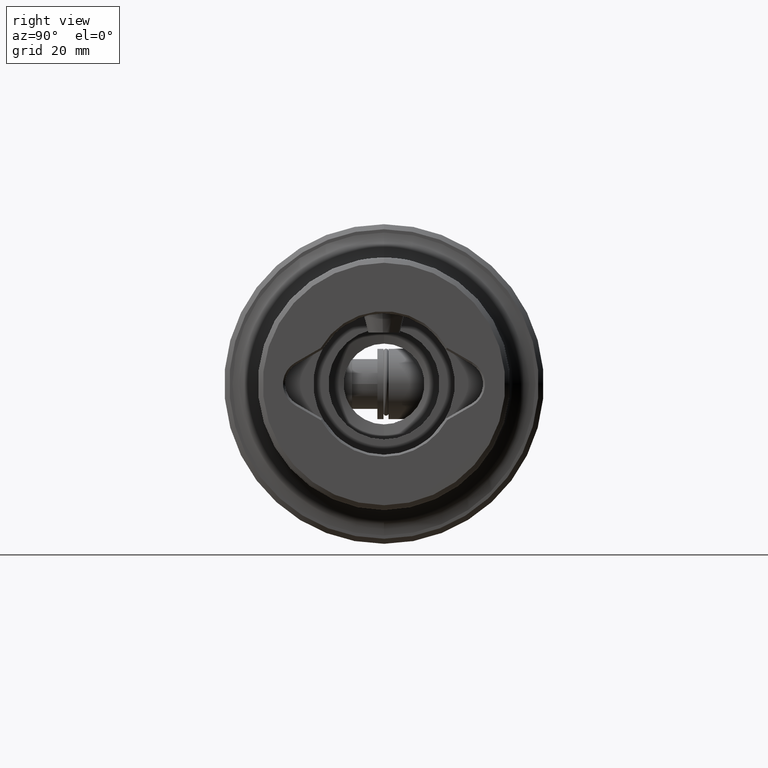
[diagram: clean part render]
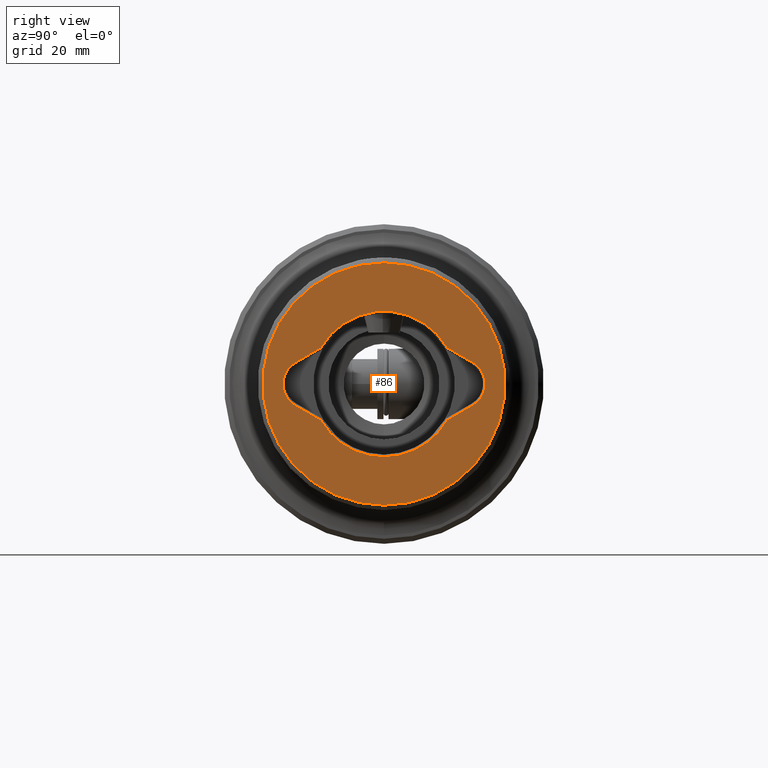
[diagram: same view with one face highlighted and labeled with its STEP entity id]
A machine part, right view. The second image highlights one B-rep face of the part: STEP entity #86.
In plain terms, the highlighted planar face has unit normal (1, 0, 0).
Its self-contained STEP definition (entity closure, byte-faithful):
#86 = ADVANCED_FACE ( 'NONE', ( #2101, #2102 ), #1176, .T. ) ;
#123 = EDGE_CURVE ( 'NONE', #1803, #1780, #374, .T. ) ;
#125 = EDGE_CURVE ( 'NONE', #1836, #1819, #2150, .T. ) ;
#126 = EDGE_CURVE ( 'NONE', #1810, #1836, #381, .T. ) ;
#127 = EDGE_CURVE ( 'NONE', #1819, #1740, #349, .T. ) ;
#128 = EDGE_CURVE ( 'NONE', #1740, #1761, #2151, .T. ) ;
#129 = EDGE_CURVE ( 'NONE', #1761, #1825, #369, .T. ) ;
#130 = EDGE_CURVE ( 'NONE', #1825, #1741, #2152, .T. ) ;
#131 = EDGE_CURVE ( 'NONE', #1713, #1770, #380, .T. ) ;
#132 = EDGE_CURVE ( 'NONE', #1770, #1810, #2153, .T. ) ;
#239 = EDGE_CURVE ( 'NONE', #1741, #1713, #3102, .T. ) ;
#323 = AXIS2_PLACEMENT_3D ( 'NONE', #1177, #1178, #1179 ) ;
#349 = CIRCLE ( 'NONE', #385, 14.39999999999999700 ) ;
#369 = CIRCLE ( 'NONE', #387, 4.899999999999990600 ) ;
#374 = CIRCLE ( 'NONE', #377, 24.00000000000000000 ) ;
#377 = AXIS2_PLACEMENT_3D ( 'NONE', #2569, #2570, #2571 ) ;
#380 = CIRCLE ( 'NONE', #389, 14.39999999999999700 ) ;
#381 = CIRCLE ( 'NONE', #383, 4.899999999999997700 ) ;
#382 = VECTOR ( 'NONE', #2576, 1000.000000000000000 ) ;
#383 = AXIS2_PLACEMENT_3D ( 'NONE', #2577, #2578, #2579 ) ;
#385 = AXIS2_PLACEMENT_3D ( 'NONE', #2580, #2581, #2582 ) ;
#386 = VECTOR ( 'NONE', #2584, 1000.000000000000000 ) ;
#387 = AXIS2_PLACEMENT_3D ( 'NONE', #2585, #2586, #2587 ) ;
#388 = VECTOR ( 'NONE', #2589, 1000.000000000000100 ) ;
#389 = AXIS2_PLACEMENT_3D ( 'NONE', #2590, #2591, #2592 ) ;
#390 = VECTOR ( 'NONE', #2594, 1000.000000000000000 ) ;
#593 = ORIENTED_EDGE ( 'NONE', *, *, #126, .T. ) ;
#594 = ORIENTED_EDGE ( 'NONE', *, *, #127, .T. ) ;
#595 = ORIENTED_EDGE ( 'NONE', *, *, #125, .T. ) ;
#596 = ORIENTED_EDGE ( 'NONE', *, *, #128, .T. ) ;
#597 = ORIENTED_EDGE ( 'NONE', *, *, #129, .T. ) ;
#598 = ORIENTED_EDGE ( 'NONE', *, *, #130, .T. ) ;
#599 = ORIENTED_EDGE ( 'NONE', *, *, #239, .T. ) ;
#600 = ORIENTED_EDGE ( 'NONE', *, *, #131, .T. ) ;
#602 = ORIENTED_EDGE ( 'NONE', *, *, #132, .T. ) ;
#603 = ORIENTED_EDGE ( 'NONE', *, *, #123, .F. ) ;
#604 = ORIENTED_EDGE ( 'NONE', *, *, #1304, .F. ) ;
#1176 = PLANE ( 'NONE',  #323 ) ;
#1177 = CARTESIAN_POINT ( 'NONE',  ( 114.0000000000000000, 0.0000000000000000000, 0.0000000000000000000 ) ) ;
#1178 = DIRECTION ( 'NONE',  ( 1.000000000000000000, 0.0000000000000000000, 0.0000000000000000000 ) ) ;
#1179 = DIRECTION ( 'NONE',  ( 0.0000000000000000000, 0.0000000000000000000, -1.000000000000000000 ) ) ;
#1304 = EDGE_CURVE ( 'NONE', #1780, #1803, #3169, .T. ) ;
#1713 = VERTEX_POINT ( 'NONE', #4942 ) ;
#1740 = VERTEX_POINT ( 'NONE', #4969 ) ;
#1741 = VERTEX_POINT ( 'NONE', #4970 ) ;
#1761 = VERTEX_POINT ( 'NONE', #4990 ) ;
#1770 = VERTEX_POINT ( 'NONE', #4999 ) ;
#1780 = VERTEX_POINT ( 'NONE', #5009 ) ;
#1803 = VERTEX_POINT ( 'NONE', #5032 ) ;
#1810 = VERTEX_POINT ( 'NONE', #5039 ) ;
#1819 = VERTEX_POINT ( 'NONE', #5048 ) ;
#1825 = VERTEX_POINT ( 'NONE', #5054 ) ;
#1836 = VERTEX_POINT ( 'NONE', #5065 ) ;
#1986 = EDGE_LOOP ( 'NONE', ( #593, #595, #594, #596, #597, #598, #599, #600, #602 ) ) ;
#1987 = EDGE_LOOP ( 'NONE', ( #604, #603 ) ) ;
#2101 = FACE_BOUND ( 'NONE', #1986, .T. ) ;
#2102 = FACE_OUTER_BOUND ( 'NONE', #1987, .T. ) ;
#2150 = LINE ( 'NONE', #2575, #382 ) ;
#2151 = LINE ( 'NONE', #2583, #386 ) ;
#2152 = LINE ( 'NONE', #2588, #388 ) ;
#2153 = LINE ( 'NONE', #2593, #390 ) ;
#2569 = CARTESIAN_POINT ( 'NONE',  ( 114.0000000000000000, 0.0000000000000000000, 0.0000000000000000000 ) ) ;
#2570 = DIRECTION ( 'NONE',  ( -1.000000000000000000, -0.0000000000000000000, -0.0000000000000000000 ) ) ;
#2571 = DIRECTION ( 'NONE',  ( 0.0000000000000000000, 0.0000000000000000000, 1.000000000000000000 ) ) ;
#2575 = CARTESIAN_POINT ( 'NONE',  ( 114.0000000000000000, -12.39736786006797300, 7.218398031568606000 ) ) ;
#2576 = DIRECTION ( 'NONE',  ( 0.0000000000000000000, 0.8660254037844384900, 0.5000000000000002200 ) ) ;
#2577 = CARTESIAN_POINT ( 'NONE',  ( 114.0000000000000000, -15.10000000000000500, -6.938893903907228400E-015 ) ) ;
#2578 = DIRECTION ( 'NONE',  ( -1.000000000000000000, -0.0000000000000000000, -0.0000000000000000000 ) ) ;
#2579 = DIRECTION ( 'NONE',  ( 0.0000000000000000000, 0.0000000000000000000, -1.000000000000000000 ) ) ;
#2580 = CARTESIAN_POINT ( 'NONE',  ( 114.0000000000000000, 0.0000000000000000000, 0.0000000000000000000 ) ) ;
#2581 = DIRECTION ( 'NONE',  ( -1.000000000000000000, -0.0000000000000000000, -0.0000000000000000000 ) ) ;
#2582 = DIRECTION ( 'NONE',  ( 0.0000000000000000000, 0.0000000000000000000, -1.000000000000000000 ) ) ;
#2583 = CARTESIAN_POINT ( 'NONE',  ( 114.0000000000000000, 17.55000000000000800, 4.243524478543745800 ) ) ;
#2584 = DIRECTION ( 'NONE',  ( 0.0000000000000000000, 0.8660254037844393700, -0.4999999999999986700 ) ) ;
#2585 = CARTESIAN_POINT ( 'NONE',  ( 114.0000000000000000, 15.10000000000000500, -6.938893903907228400E-015 ) ) ;
#2586 = DIRECTION ( 'NONE',  ( -1.000000000000000000, -0.0000000000000000000, -0.0000000000000000000 ) ) ;
#2587 = DIRECTION ( 'NONE',  ( 0.0000000000000000000, 0.0000000000000000000, -1.000000000000000000 ) ) ;
#2588 = CARTESIAN_POINT ( 'NONE',  ( 114.0000000000000000, 12.39736786006797300, -7.218398031568603400 ) ) ;
#2589 = DIRECTION ( 'NONE',  ( 0.0000000000000000000, -0.8660254037844386000, -0.5000000000000001100 ) ) ;
#2590 = CARTESIAN_POINT ( 'NONE',  ( 114.0000000000000000, 0.0000000000000000000, 0.0000000000000000000 ) ) ;
#2591 = DIRECTION ( 'NONE',  ( -1.000000000000000000, -0.0000000000000000000, -0.0000000000000000000 ) ) ;
#2592 = DIRECTION ( 'NONE',  ( 0.0000000000000000000, 0.0000000000000000000, -1.000000000000000000 ) ) ;
#2593 = CARTESIAN_POINT ( 'NONE',  ( 114.0000000000000000, -17.55000000000001100, -4.243524478543762700 ) ) ;
#2594 = DIRECTION ( 'NONE',  ( 0.0000000000000000000, -0.8660254037844403700, 0.4999999999999969500 ) ) ;
#3102 = CIRCLE ( 'NONE', #3108, 14.39999999999999700 ) ;
#3108 = AXIS2_PLACEMENT_3D ( 'NONE', #3542, #3543, #3544 ) ;
#3169 = CIRCLE ( 'NONE', #3171, 24.00000000000000000 ) ;
#3171 = AXIS2_PLACEMENT_3D ( 'NONE', #3688, #3689, #3690 ) ;
#3542 = CARTESIAN_POINT ( 'NONE',  ( 114.0000000000000000, 0.0000000000000000000, 0.0000000000000000000 ) ) ;
#3543 = DIRECTION ( 'NONE',  ( -1.000000000000000000, -0.0000000000000000000, -0.0000000000000000000 ) ) ;
#3544 = DIRECTION ( 'NONE',  ( 0.0000000000000000000, 8.881784197001252300E-016, -1.000000000000000000 ) ) ;
#3688 = CARTESIAN_POINT ( 'NONE',  ( 114.0000000000000000, 0.0000000000000000000, 0.0000000000000000000 ) ) ;
#3689 = DIRECTION ( 'NONE',  ( -1.000000000000000000, -0.0000000000000000000, -0.0000000000000000000 ) ) ;
#3690 = DIRECTION ( 'NONE',  ( 0.0000000000000000000, 0.0000000000000000000, 1.000000000000000000 ) ) ;
#4942 = CARTESIAN_POINT ( 'NONE',  ( 114.0000000000000000, 0.0000000000000000000, -14.39999999999999700 ) ) ;
#4969 = CARTESIAN_POINT ( 'NONE',  ( 114.0000000000000000, 12.49142840859129500, 7.164092148558547800 ) ) ;
#4970 = CARTESIAN_POINT ( 'NONE',  ( 114.0000000000000000, 12.49142840859130200, -7.164092148558535400 ) ) ;
#4990 = CARTESIAN_POINT ( 'NONE',  ( 114.0000000000000000, 17.55000000000001100, 4.243524478543744000 ) ) ;
#4999 = CARTESIAN_POINT ( 'NONE',  ( 114.0000000000000000, -12.49142840859129100, -7.164092148558556700 ) ) ;
#5009 = CARTESIAN_POINT ( 'NONE',  ( 114.0000000000000000, 0.0000000000000000000, 24.00000000000000000 ) ) ;
#5032 = CARTESIAN_POINT ( 'NONE',  ( 114.0000000000000000, 2.988138189919542100E-015, -24.00000000000000000 ) ) ;
#5039 = CARTESIAN_POINT ( 'NONE',  ( 114.0000000000000000, -17.55000000000001500, -4.243524478543760000 ) ) ;
#5048 = CARTESIAN_POINT ( 'NONE',  ( 114.0000000000000000, -12.49142840859130000, 7.164092148558538900 ) ) ;
#5054 = CARTESIAN_POINT ( 'NONE',  ( 114.0000000000000000, 17.55000000000000400, -4.243524478543746700 ) ) ;
#5065 = CARTESIAN_POINT ( 'NONE',  ( 114.0000000000000000, -17.55000000000000400, 4.243524478543740500 ) ) ;